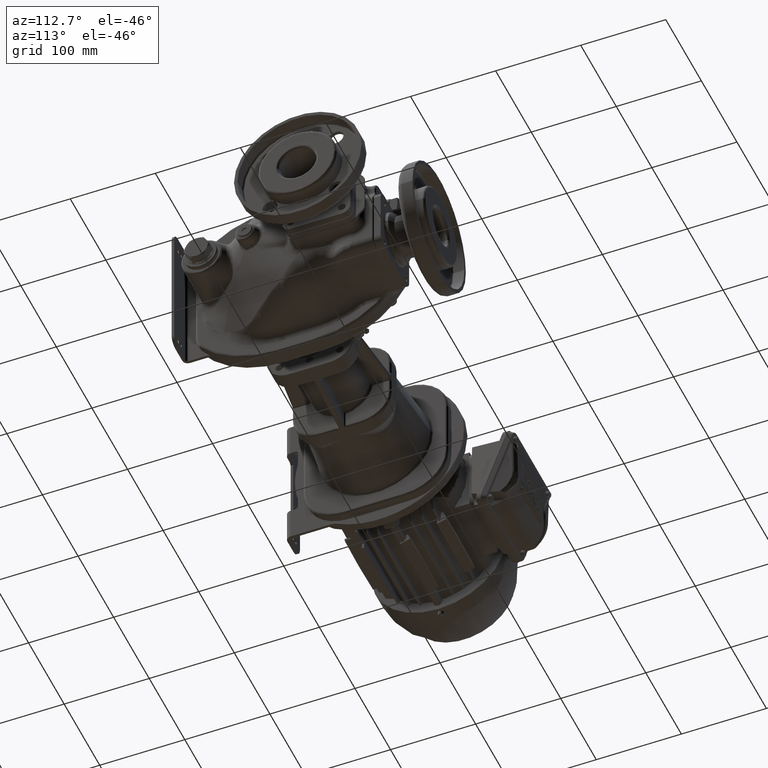
[diagram: clean part render]
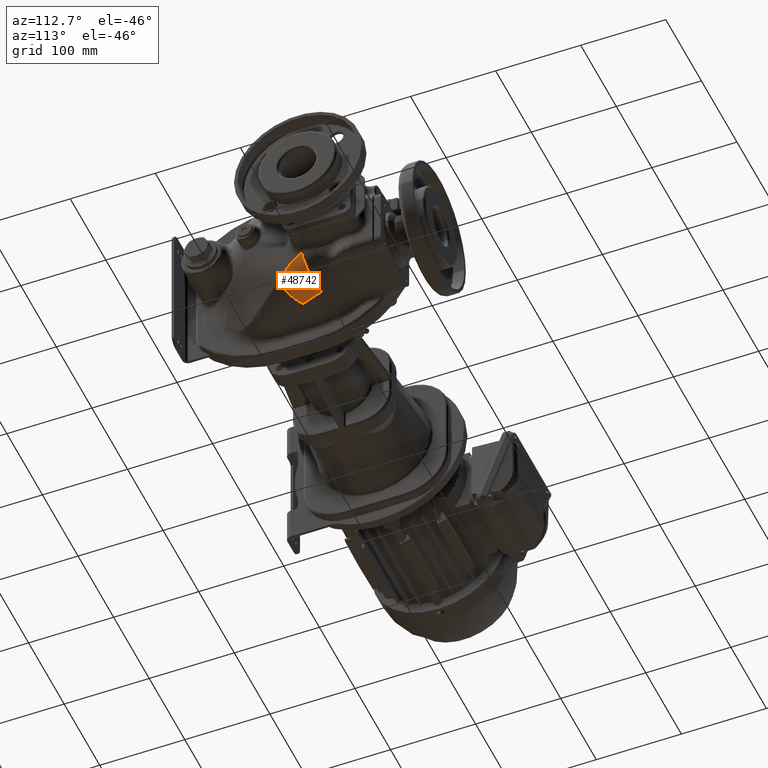
[diagram: same view with one face highlighted and labeled with its STEP entity id]
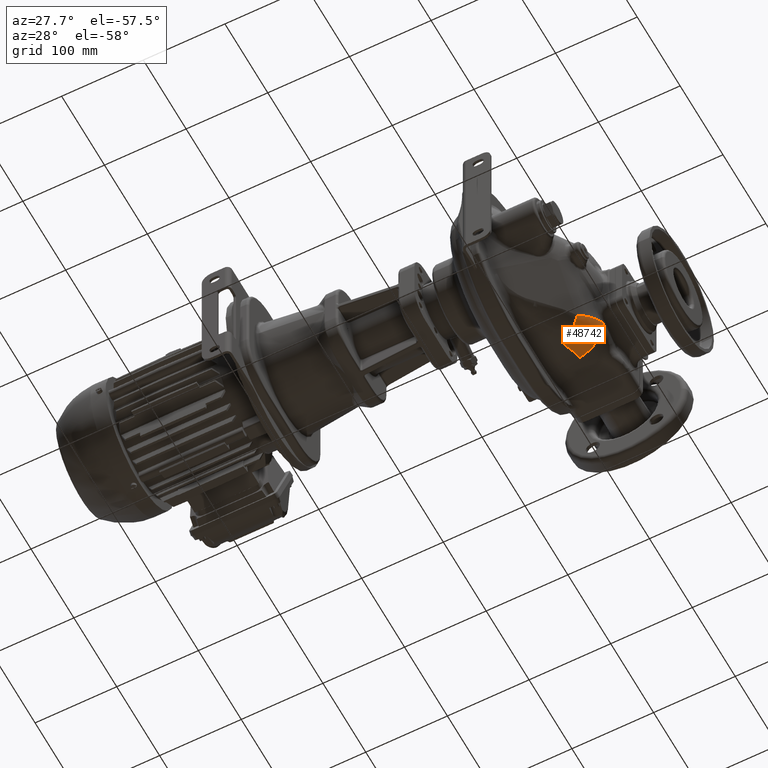
[diagram: same view with one face highlighted and labeled with its STEP entity id]
A machine part, auxiliary view. The second image highlights one B-rep face of the part: STEP entity #48742.
A second angle (auxiliary view) of the same face is appended — the face is thin or edge-on in the first view.
In plain terms, the highlighted face is a freeform B-spline surface patch.
Its self-contained STEP definition (entity closure, byte-faithful):
#342=CARTESIAN_POINT('',(4.785533905933E1,1.406656142600E2,-7.753924328252E1));
#343=CARTESIAN_POINT('',(4.820041149357E1,1.409855272729E2,-7.737115006818E1));
#344=CARTESIAN_POINT('',(4.888097448836E1,1.416340918439E2,-7.702866919100E1));
#345=CARTESIAN_POINT('',(4.987175770622E1,1.426342225722E2,-7.649870211809E1));
#346=CARTESIAN_POINT('',(5.083159010993E1,1.436595619074E2,-7.595145281680E1));
#347=CARTESIAN_POINT('',(5.175936613069E1,1.447100112360E2,-7.538829239206E1));
#348=CARTESIAN_POINT('',(5.265417658843E1,1.457843313638E2,-7.480924630130E1));
#349=CARTESIAN_POINT('',(5.351525046915E1,1.468813709026E2,-7.421422368833E1));
#350=CARTESIAN_POINT('',(5.434163465310E1,1.480007808960E2,-7.360435649051E1));
#351=CARTESIAN_POINT('',(5.513236928975E1,1.491409923806E2,-7.297971950727E1));
#352=CARTESIAN_POINT('',(5.588650211888E1,1.503006249194E2,-7.234073183348E1));
#353=CARTESIAN_POINT('',(5.660311004585E1,1.514788719453E2,-7.168853660490E1));
#354=CARTESIAN_POINT('',(5.728149287805E1,1.526741554347E2,-7.102313012427E1));
#355=CARTESIAN_POINT('',(5.792098103886E1,1.538854795701E2,-7.034512033110E1));
#356=CARTESIAN_POINT('',(5.852091555164E1,1.551119477768E2,-6.965533063174E1));
#357=CARTESIAN_POINT('',(5.908069903058E1,1.563519320078E2,-6.895380961147E1));
#358=CARTESIAN_POINT('',(5.959967963630E1,1.576043621807E2,-6.824154882036E1));
#359=CARTESIAN_POINT('',(6.007727190351E1,1.588678106248E2,-6.751924420090E1));
#360=CARTESIAN_POINT('',(6.051299616418E1,1.601405793072E2,-6.678718004386E1));
#361=CARTESIAN_POINT('',(6.090641738883E1,1.614216776440E2,-6.604644422635E1));
#362=CARTESIAN_POINT('',(6.125721034266E1,1.627096732816E2,-6.529742477533E1));
#363=CARTESIAN_POINT('',(6.156507912111E1,1.640031029757E2,-6.454054603801E1));
#364=CARTESIAN_POINT('',(6.182974302558E1,1.653008819331E2,-6.377689246588E1));
#365=CARTESIAN_POINT('',(6.205099830855E1,1.666013106756E2,-6.300686462652E1));
#366=CARTESIAN_POINT('',(6.222869236615E1,1.679028952356E2,-6.223120547031E1));
#367=CARTESIAN_POINT('',(6.236275702533E1,1.692044988298E2,-6.145087892048E1));
#368=CARTESIAN_POINT('',(6.245319218973E1,1.705045729077E2,-6.066605690374E1));
#369=CARTESIAN_POINT('',(6.248441280751E1,1.713695200260E2,-6.014058546834E1));
#370=CARTESIAN_POINT('',(6.249277119869E1,1.718013611700E2,-5.987734444607E1));
#2449=CARTESIAN_POINT('',(4.785533905933E1,1.406656142600E2,-7.753924328252E1));
#2557=CARTESIAN_POINT('',(2.374626281275E1,1.589221426747E2,-6.010460052746E1));
#2558=DIRECTION('',(5.913317813736E-1,8.059998408702E-1,-2.628651469174E-2));
#2559=DIRECTION('',(6.906612700367E-1,-5.230012536521E-1,-4.994564032521E-1));
#2560=AXIS2_PLACEMENT_3D('',#2557,#2558,#2559);
#2562=CARTESIAN_POINT('',(6.249542808343E1,1.720733168557E2,-5.987521590215E1));
#2563=CARTESIAN_POINT('',(6.249519889525E1,1.720428303524E2,-5.987566745799E1));
#2564=CARTESIAN_POINT('',(6.249469968645E1,1.719820360916E2,-5.987642354882E1));
#2565=CARTESIAN_POINT('',(6.249379391223E1,1.718913544881E2,-5.987713239086E1));
#2566=CARTESIAN_POINT('',(6.249316005464E1,1.718312936728E2,-5.987732076200E1));
#2567=CARTESIAN_POINT('',(6.249279984891E1,1.718013606139E2,-5.987734534185E1));
#2569=CARTESIAN_POINT('',(6.249696495404E1,1.726176459050E2,-5.986705481256E1));
#2570=CARTESIAN_POINT('',(6.249707823168E1,1.725572578898E2,-5.986797232459E1));
#2571=CARTESIAN_POINT('',(6.249711584370E1,1.724364129565E2,-5.986979612125E1));
#2572=CARTESIAN_POINT('',(6.249660391488E1,1.722549469916E2,-5.987251960467E1));
#2573=CARTESIAN_POINT('',(6.249588333067E1,1.721338776808E2,-5.987431933171E1));
#2574=CARTESIAN_POINT('',(6.249542808343E1,1.720733168557E2,-5.987521590215E1));
#2688=CARTESIAN_POINT('',(2.950143423141E1,1.766535873460E2,-5.878141298912E1));
#2689=DIRECTION('',(1.249393653993E-1,9.803258246838E-1,1.528117548872E-1));
#2690=DIRECTION('',(9.920731243594E-1,-1.213483468819E-1,-3.264191527565E-2));
#2691=AXIS2_PLACEMENT_3D('',#2688,#2689,#2690);
#4570=CARTESIAN_POINT('',(2.316232062993E1,1.582125048693E2,-9.499973745123E1));
#4572=CARTESIAN_POINT('',(2.316232062993E1,1.582125048693E2,-9.499973745123E1));
#4573=CARTESIAN_POINT('',(2.334135457396E1,1.586233960283E2,-9.499872211117E1));
#4574=CARTESIAN_POINT('',(2.369731772827E1,1.594680427383E2,-9.499076459977E1));
#4575=CARTESIAN_POINT('',(2.422471059240E1,1.608077133719E2,-9.495780930093E1));
#4576=CARTESIAN_POINT('',(2.473996500658E1,1.622091866484E2,-9.490090512766E1));
#4577=CARTESIAN_POINT('',(2.523887090166E1,1.636633914510E2,-9.481756923350E1));
#4578=CARTESIAN_POINT('',(2.571645595639E1,1.651569856394E2,-9.470614062810E1));
#4579=CARTESIAN_POINT('',(2.616948591820E1,1.666798648619E2,-9.456548786668E1));
#4580=CARTESIAN_POINT('',(2.659533284582E1,1.682226295437E2,-9.439502152228E1));
#4581=CARTESIAN_POINT('',(2.699173919488E1,1.697761057291E2,-9.419475074654E1));
#4582=CARTESIAN_POINT('',(2.735698269594E1,1.713319815220E2,-9.396519421450E1));
#4583=CARTESIAN_POINT('',(2.769011187667E1,1.728844346686E2,-9.370701047495E1));
#4584=CARTESIAN_POINT('',(2.799019024883E1,1.744272017995E2,-9.342134427676E1));
#4585=CARTESIAN_POINT('',(2.825669294154E1,1.759553037612E2,-9.310952174769E1));
#4586=CARTESIAN_POINT('',(2.848934027731E1,1.774646642694E2,-9.277300145652E1));
#4587=CARTESIAN_POINT('',(2.868799635838E1,1.789514130469E2,-9.241348161456E1));
#4588=CARTESIAN_POINT('',(2.885274401965E1,1.804128631578E2,-9.203259928196E1));
#4589=CARTESIAN_POINT('',(2.894005267413E1,1.813677883973E2,-9.176586614643E1));
#4590=CARTESIAN_POINT('',(2.897816355958E1,1.818405810906E2,-9.162945415083E1));
#39436=VERTEX_POINT('',#2449);
#39438=VERTEX_POINT('',#4570);
#39446=VERTEX_POINT('',#4590);
#39462=CARTESIAN_POINT('',(6.249696494592E1,1.726176418009E2,
-5.986705606483E1));
#39463=VERTEX_POINT('',#39462);
#39464=VERTEX_POINT('',#370);
#39724=VERTEX_POINT('',#2574);
#48641=CARTESIAN_POINT('',(5.168305099043E1,1.380178160118E2,
-5.875168225767E1));
#48642=CARTESIAN_POINT('',(5.175313227087E1,1.381169540290E2,
-5.876830155147E1));
#48643=CARTESIAN_POINT('',(5.225715234370E1,1.388350455100E2,
-5.888806458389E1));
#48644=CARTESIAN_POINT('',(5.315274046831E1,1.401795379130E2,
-5.910372778173E1));
#48645=CARTESIAN_POINT('',(5.429857121589E1,1.420579923670E2,
-5.938148874932E1));
#48646=CARTESIAN_POINT('',(5.535786774118E1,1.439555527446E2,
-5.963514219493E1));
#48647=CARTESIAN_POINT('',(5.633543655309E1,1.458718554112E2,
-5.986101874392E1));
#48648=CARTESIAN_POINT('',(5.723537259612E1,1.478069585056E2,
-6.005548337533E1));
#48649=CARTESIAN_POINT('',(5.806098193733E1,1.497610568062E2,
-6.021490280257E1));
#48650=CARTESIAN_POINT('',(5.881485992778E1,1.517344862721E2,
-6.033570833598E1));
#48651=CARTESIAN_POINT('',(5.949879534473E1,1.537272695727E2,
-6.041422297788E1));
#48652=CARTESIAN_POINT('',(6.011397876479E1,1.557394490940E2,
-6.044685448410E1));
#48653=CARTESIAN_POINT('',(6.066094958859E1,1.577708653671E2,
-6.043014892539E1));
#48654=CARTESIAN_POINT('',(6.113960396020E1,1.598209363311E2,
-6.036069364834E1));
#48655=CARTESIAN_POINT('',(6.154927695315E1,1.618887539584E2,
-6.023530685234E1));
#48656=CARTESIAN_POINT('',(6.188876059524E1,1.639729350062E2,
-6.005103419117E1));
#48657=CARTESIAN_POINT('',(6.215636408116E1,1.660715941602E2,
-5.980523655642E1));
#48658=CARTESIAN_POINT('',(6.234996902488E1,1.681823407119E2,
-5.949569501919E1));
#48659=CARTESIAN_POINT('',(6.246710518415E1,1.703021375192E2,
-5.912059031208E1));
#48660=CARTESIAN_POINT('',(6.249444100632E1,1.718355198877E2,
-5.880183796462E1));
#48661=CARTESIAN_POINT('',(6.249058843294E1,1.726601497796E2,
-5.861522494307E1));
#48662=CARTESIAN_POINT('',(6.248969445023E1,1.727746412466E2,
-5.858902168119E1));
#48663=CARTESIAN_POINT('',(5.201263374381E1,1.370606704961E2,
-8.033934702212E1));
#48664=CARTESIAN_POINT('',(5.207777462119E1,1.371671363353E2,
-8.035531379118E1));
#48665=CARTESIAN_POINT('',(5.254646210187E1,1.379385727291E2,
-8.047010680385E1));
#48666=CARTESIAN_POINT('',(5.338195949664E1,1.393865881564E2,
-8.067319774247E1));
#48667=CARTESIAN_POINT('',(5.445752836755E1,1.414189528522E2,
-8.092597641972E1));
#48668=CARTESIAN_POINT('',(5.545912111834E1,1.434817462981E2,
-8.114727526489E1));
#48669=CARTESIAN_POINT('',(5.639132348319E1,1.455750625951E2,
-8.133363113311E1));
#48670=CARTESIAN_POINT('',(5.725800584596E1,1.476992686823E2,
-8.148158146655E1));
#48671=CARTESIAN_POINT('',(5.806225865762E1,1.498547658498E2,
-8.158764048172E1));
#48672=CARTESIAN_POINT('',(5.880637394088E1,1.520418334526E2,
-8.164834158749E1));
#48673=CARTESIAN_POINT('',(5.949209646210E1,1.542608456127E2,
-8.166012336982E1));
#48674=CARTESIAN_POINT('',(6.012037026995E1,1.565118329393E2,
-8.161946416953E1));
#48675=CARTESIAN_POINT('',(6.069138508801E1,1.587944060151E2,
-8.152293366757E1));
#48676=CARTESIAN_POINT('',(6.120475689254E1,1.611079438152E2,
-8.136713238130E1));
#48677=CARTESIAN_POINT('',(6.165938938896E1,1.634512715645E2,
-8.114884645465E1));
#48678=CARTESIAN_POINT('',(6.205359056453E1,1.658227441901E2,
-8.086506076546E1));
#48679=CARTESIAN_POINT('',(6.238508722457E1,1.682201662177E2,
-8.051304131806E1));
#48680=CARTESIAN_POINT('',(6.265104836249E1,1.706407064024E2,
-8.009044199945E1));
#48681=CARTESIAN_POINT('',(6.284823591674E1,1.730810500840E2,
-7.959529062282E1));
#48682=CARTESIAN_POINT('',(6.293816270085E1,1.748529299416E2,
-7.918475838350E1));
#48683=CARTESIAN_POINT('',(6.296926086498E1,1.758080581705E2,
-7.894714299336E1));
#48684=CARTESIAN_POINT('',(6.297324375737E1,1.759407116310E2,
-7.891382658303E1));
#48685=CARTESIAN_POINT('',(3.953708219322E1,1.458037956076E2,
-9.566809210452E1));
#48686=CARTESIAN_POINT('',(3.958366204622E1,1.458938671530E2,
-9.567682022890E1));
#48687=CARTESIAN_POINT('',(3.991919777843E1,1.465469496018E2,
-9.573924382647E1));
#48688=CARTESIAN_POINT('',(4.052260460996E1,1.477786687095E2,
-9.584519255774E1));
#48689=CARTESIAN_POINT('',(4.131104997718E1,1.495207962313E2,
-9.596513464552E1));
#48690=CARTESIAN_POINT('',(4.205640984571E1,1.513012512655E2,
-9.605596719035E1));
#48691=CARTESIAN_POINT('',(4.276082215729E1,1.531191566002E2,
-9.611515060683E1));
#48692=CARTESIAN_POINT('',(4.342598144598E1,1.549736974730E2,
-9.614017372503E1));
#48693=CARTESIAN_POINT('',(4.405310227625E1,1.568639978998E2,
-9.612854958939E1));
#48694=CARTESIAN_POINT('',(4.464287397076E1,1.587889630733E2,
-9.607783746244E1));
#48695=CARTESIAN_POINT('',(4.519574306021E1,1.607476698188E2,
-9.598561023631E1));
#48696=CARTESIAN_POINT('',(4.571157637961E1,1.627387970150E2,
-9.584951367166E1));
#48697=CARTESIAN_POINT('',(4.618974301508E1,1.647606382033E2,
-9.566730284898E1));
#48698=CARTESIAN_POINT('',(4.662928800729E1,1.668113809723E2,
-9.543683043472E1));
#48699=CARTESIAN_POINT('',(4.702877365033E1,1.688887555697E2,
-9.515612666060E1));
#48700=CARTESIAN_POINT('',(4.738639513057E1,1.709901874541E2,
-9.482341912550E1));
#48701=CARTESIAN_POINT('',(4.769998045310E1,1.731127402920E2,
-9.443718157519E1));
#48702=CARTESIAN_POINT('',(4.796700147605E1,1.752530506274E2,
-9.399619626737E1));
#48703=CARTESIAN_POINT('',(4.818470107217E1,1.774075456362E2,
-9.349955117675E1));
#48704=CARTESIAN_POINT('',(4.830392803175E1,1.789690907242E2,
-9.310076006876E1));
#48705=CARTESIAN_POINT('',(4.835548640728E1,1.798099571746E2,
-9.287365030787E1));
#48706=CARTESIAN_POINT('',(4.836240107991E1,1.799267243849E2,
-9.284187386393E1));
#48707=CARTESIAN_POINT('',(2.219607383675E1,1.586829007874E2,
-9.498241355691E1));
#48708=CARTESIAN_POINT('',(2.222228463182E1,1.587432895626E2,
-9.498192372737E1));
#48709=CARTESIAN_POINT('',(2.241158975604E1,1.591816419028E2,
-9.497790740301E1));
#48710=CARTESIAN_POINT('',(2.275861302495E1,1.600149004248E2,
-9.496396712099E1));
#48711=CARTESIAN_POINT('',(2.322580410204E1,1.612073557962E2,
-9.492775804384E1));
#48712=CARTESIAN_POINT('',(2.367947344407E1,1.624375864561E2,
-9.487304381512E1));
#48713=CARTESIAN_POINT('',(2.411864200416E1,1.637029329930E2,
-9.479833796790E1));
#48714=CARTESIAN_POINT('',(2.454226192943E1,1.650006604986E2,
-9.470225416364E1));
#48715=CARTESIAN_POINT('',(2.494920547722E1,1.663279448097E2,
-9.458351992646E1));
#48716=CARTESIAN_POINT('',(2.533827988707E1,1.676818739426E2,
-9.444099125500E1));
#48717=CARTESIAN_POINT('',(2.570820545113E1,1.690594042996E2,
-9.427367217615E1));
#48718=CARTESIAN_POINT('',(2.605762666413E1,1.704573833427E2,
-9.408072973711E1));
#48719=CARTESIAN_POINT('',(2.638514328364E1,1.718725386688E2,
-9.386151179654E1));
#48720=CARTESIAN_POINT('',(2.668930200115E1,1.733014722792E2,
-9.361556525686E1));
#48721=CARTESIAN_POINT('',(2.696863093682E1,1.747406880779E2,
-9.334264881982E1));
#48722=CARTESIAN_POINT('',(2.722165550447E1,1.761866059490E2,
-9.304274541102E1));
#48723=CARTESIAN_POINT('',(2.744692409255E1,1.776355894967E2,
-9.271607051689E1));
#48724=CARTESIAN_POINT('',(2.764303416045E1,1.790839900889E2,
-9.236307220408E1));
#48725=CARTESIAN_POINT('',(2.780865219305E1,1.805281603918E2,
-9.198443698291E1));
#48726=CARTESIAN_POINT('',(2.790524135455E1,1.815643994860E2,
-9.169343575089E1));
#48727=CARTESIAN_POINT('',(2.794974814897E1,1.821189624043E2,
-9.153165363548E1));
#48728=CARTESIAN_POINT('',(2.795578366645E1,1.821959054314E2,
-9.150909020897E1));
#48729=(BOUNDED_SURFACE()B_SPLINE_SURFACE(3,3,((#48641,#48642,#48643,#48644,
#48645,#48646,#48647,#48648,#48649,#48650,#48651,#48652,#48653,#48654,#48655,
#48656,#48657,#48658,#48659,#48660,#48661,#48662),(#48663,#48664,#48665,#48666,
#48667,#48668,#48669,#48670,#48671,#48672,#48673,#48674,#48675,#48676,#48677,
#48678,#48679,#48680,#48681,#48682,#48683,#48684),(#48685,#48686,#48687,#48688,
#48689,#48690,#48691,#48692,#48693,#48694,#48695,#48696,#48697,#48698,#48699,
#48700,#48701,#48702,#48703,#48704,#48705,#48706),(#48707,#48708,#48709,#48710,
#48711,#48712,#48713,#48714,#48715,#48716,#48717,#48718,#48719,#48720,#48721,
#48722,#48723,#48724,#48725,#48726,#48727,#48728)),.UNSPECIFIED.,.F.,.F.,.F.)B_SPLINE_SURFACE_WITH_KNOTS((4,4),(4,1,1,1,1,1,1,1,1,1,1,1,1,1,1,1,1,1,1,4),(0.E0,
1.E0),(-9.002521908425E-3,0.E0,5.619279802385E-2,1.128972553585E-1,
1.700890508396E-1,2.277370254393E-1,2.858081720712E-1,3.442668262065E-1,
4.030741200804E-1,4.621890370189E-1,5.215667655012E-1,5.811599401078E-1,
6.409185838308E-1,7.007907530345E-1,7.607231761239E-1,8.206622596511E-1,
8.805550194404E-1,9.403496047836E-1,1.E0,1.009614167990E0),.UNSPECIFIED.)GEOMETRIC_REPRESENTATION_ITEM()RATIONAL_B_SPLINE_SURFACE(((1.189208747500E0,
1.189208747500E0,1.189208747500E0,1.189208747500E0,1.189208747500E0,
1.189208747500E0,1.189208747500E0,1.189208747500E0,1.189208747500E0,
1.189208747500E0,1.189208747500E0,1.189208747500E0,1.189208747500E0,
1.189208747500E0,1.189208747500E0,1.189208747500E0,1.189208747500E0,
1.189208747500E0,1.189208747500E0,1.189208747500E0,1.189208747500E0,
1.189208747500E0),(9.369304174999E-1,9.369304174999E-1,9.369304174999E-1,
9.369304174999E-1,9.369304174999E-1,9.369304174999E-1,9.369304174999E-1,
9.369304174999E-1,9.369304174999E-1,9.369304174999E-1,9.369304174999E-1,
9.369304174999E-1,9.369304174999E-1,9.369304174999E-1,9.369304174999E-1,
9.369304174999E-1,9.369304174999E-1,9.369304174999E-1,9.369304174999E-1,
9.369304174999E-1,9.369304174999E-1,9.369304174999E-1),(9.369304174999E-1,
9.369304174999E-1,9.369304174999E-1,9.369304174999E-1,9.369304174999E-1,
9.369304174999E-1,9.369304174999E-1,9.369304174999E-1,9.369304174999E-1,
9.369304174999E-1,9.369304174999E-1,9.369304174999E-1,9.369304174999E-1,
9.369304174999E-1,9.369304174999E-1,9.369304174999E-1,9.369304174999E-1,
9.369304174999E-1,9.369304174999E-1,9.369304174999E-1,9.369304174999E-1,
9.369304174999E-1),(1.189208747500E0,1.189208747500E0,1.189208747500E0,
1.189208747500E0,1.189208747500E0,1.189208747500E0,1.189208747500E0,
1.189208747500E0,1.189208747500E0,1.189208747500E0,1.189208747500E0,
1.189208747500E0,1.189208747500E0,1.189208747500E0,1.189208747500E0,
1.189208747500E0,1.189208747500E0,1.189208747500E0,1.189208747500E0,
1.189208747500E0,1.189208747500E0,1.189208747500E0)))REPRESENTATION_ITEM('')SURFACE());
#48731=ORIENTED_EDGE('',*,*,#48730,.T.);
#48733=ORIENTED_EDGE('',*,*,#48732,.F.);
#48734=ORIENTED_EDGE('',*,*,#48632,.F.);
#48735=ORIENTED_EDGE('',*,*,#45742,.T.);
#48737=ORIENTED_EDGE('',*,*,#48736,.F.);
#48739=ORIENTED_EDGE('',*,*,#48738,.F.);
#48740=EDGE_LOOP('',(#48731,#48733,#48734,#48735,#48737,#48739));
#48741=FACE_OUTER_BOUND('',#48740,.F.);
#48742=ADVANCED_FACE('',(#48741),#48729,.T.);
#371=B_SPLINE_CURVE_WITH_KNOTS('',3,(#342,#343,#344,#345,#346,#347,#348,#349,
#350,#351,#352,#353,#354,#355,#356,#357,#358,#359,#360,#361,#362,#363,#364,#365,
#366,#367,#368,#369,#370),.UNSPECIFIED.,.F.,.F.,(4,1,1,1,1,1,1,1,1,1,1,1,1,1,1,
1,1,1,1,1,1,1,1,1,1,1,4),(0.E0,3.846153846154E-2,7.692307692308E-2,
1.153846153846E-1,1.538461538462E-1,1.923076923077E-1,2.307692307692E-1,
2.692307692308E-1,3.076923076923E-1,3.461538461538E-1,3.846153846154E-1,
4.230769230769E-1,4.615384615385E-1,5.E-1,5.384615384615E-1,5.769230769231E-1,
6.153846153846E-1,6.538461538462E-1,6.923076923077E-1,7.307692307692E-1,
7.692307692308E-1,8.076923076923E-1,8.461538461538E-1,8.846153846154E-1,
9.230769230769E-1,9.615384615385E-1,1.E0),.UNSPECIFIED.);
#2561=CIRCLE('',#2560,3.490723643053E1);
#2568=B_SPLINE_CURVE_WITH_KNOTS('',3,(#2562,#2563,#2564,#2565,#2566,#2567),
.UNSPECIFIED.,.F.,.F.,(4,1,1,4),(0.E0,3.333333333333E-1,6.666666666667E-1,1.E0),
.UNSPECIFIED.);
#2575=B_SPLINE_CURVE_WITH_KNOTS('',3,(#2569,#2570,#2571,#2572,#2573,#2574),
.UNSPECIFIED.,.F.,.F.,(4,1,1,4),(0.E0,3.333333333333E-1,6.666666666667E-1,1.E0),
.UNSPECIFIED.);
#2692=CIRCLE('',#2691,3.325917203515E1);
#4591=B_SPLINE_CURVE_WITH_KNOTS('',3,(#4572,#4573,#4574,#4575,#4576,#4577,#4578,
#4579,#4580,#4581,#4582,#4583,#4584,#4585,#4586,#4587,#4588,#4589,#4590),
.UNSPECIFIED.,.F.,.F.,(4,1,1,1,1,1,1,1,1,1,1,1,1,1,1,1,4),(0.E0,6.25E-2,1.25E-1,
1.875E-1,2.5E-1,3.125E-1,3.75E-1,4.375E-1,5.E-1,5.625E-1,6.25E-1,6.875E-1,
7.5E-1,8.125E-1,8.75E-1,9.375E-1,1.E0),.UNSPECIFIED.);
#45742=EDGE_CURVE('',#39436,#39464,#371,.T.);
#48632=EDGE_CURVE('',#39436,#39438,#2561,.T.);
#48730=EDGE_CURVE('',#39463,#39446,#2692,.T.);
#48732=EDGE_CURVE('',#39438,#39446,#4591,.T.);
#48736=EDGE_CURVE('',#39724,#39464,#2568,.T.);
#48738=EDGE_CURVE('',#39463,#39724,#2575,.T.);